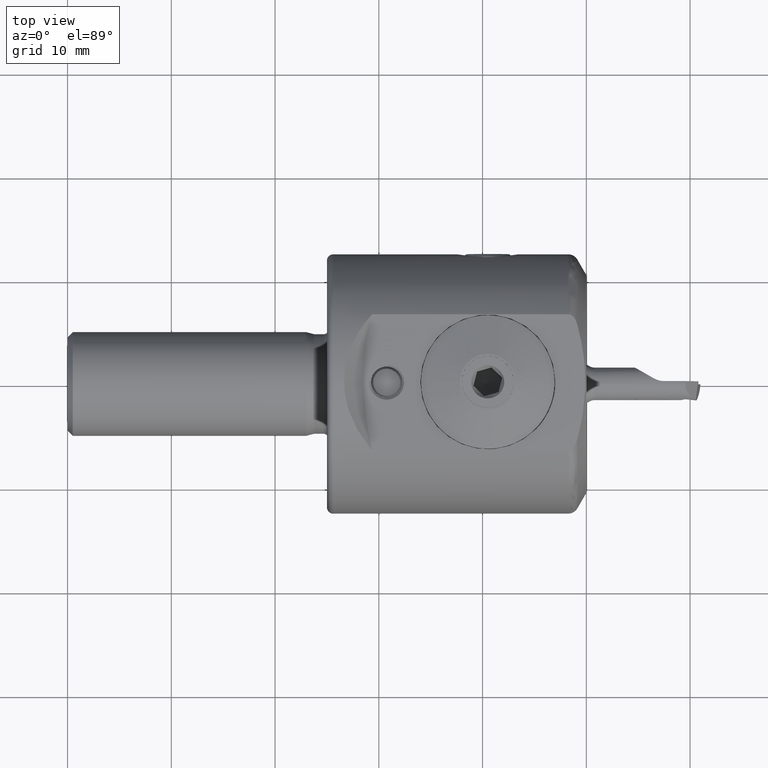
[diagram: clean part render]
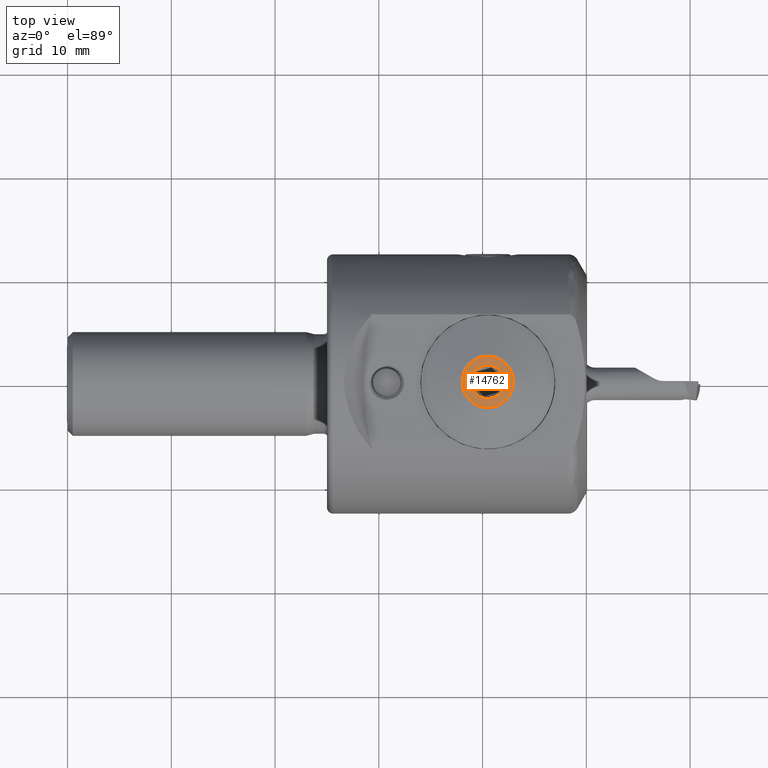
[diagram: same view with one face highlighted and labeled with its STEP entity id]
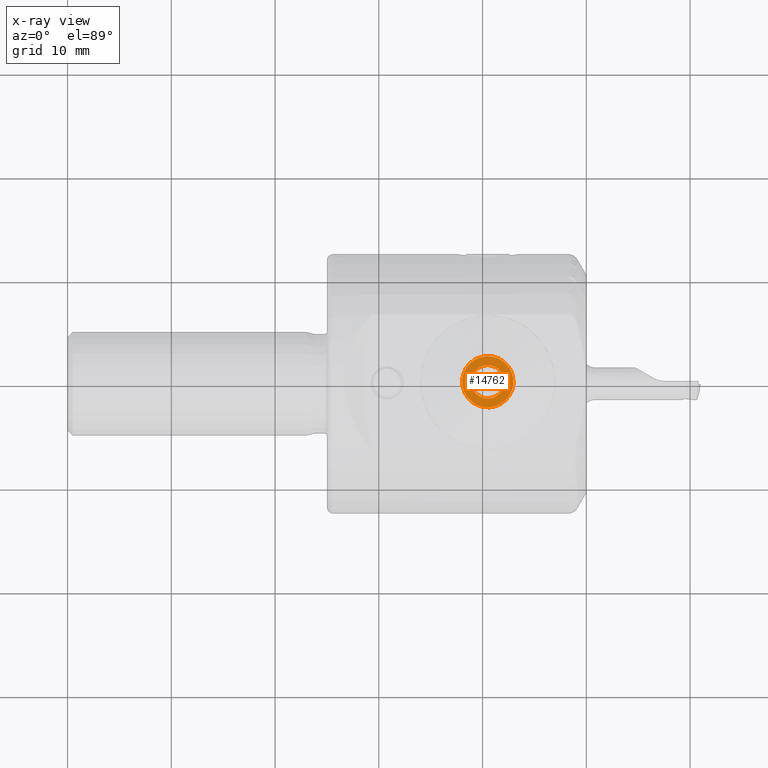
[diagram: x-ray of the same camera — body ghosted, the highlighted face saturated]
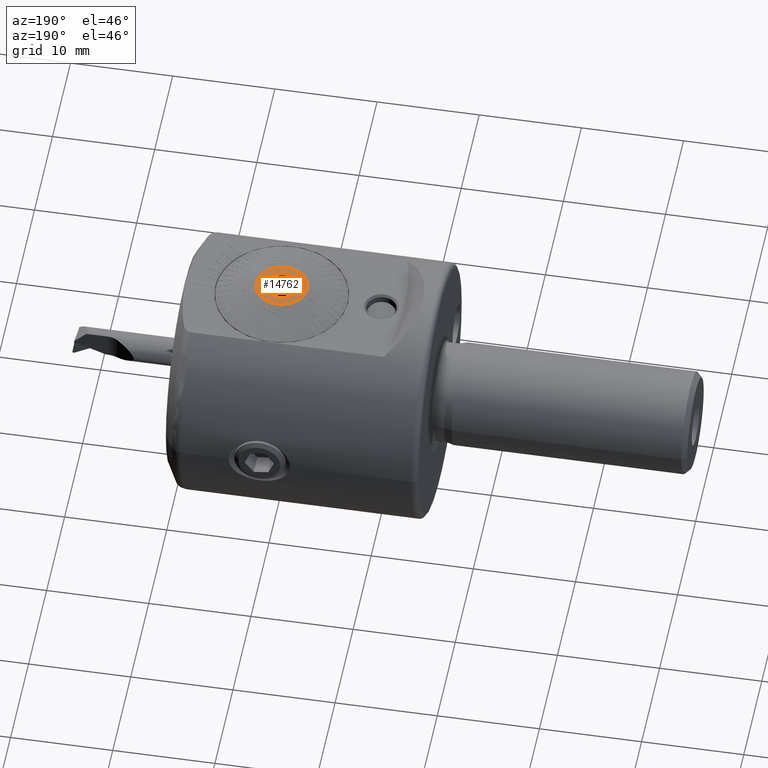
[diagram: same view with one face highlighted and labeled with its STEP entity id]
A machine part, top view. The second image highlights one B-rep face of the part: STEP entity #14762.
The next image is the same camera in x-ray: the body ghosted, the highlighted face saturated — about 0% of this face is hidden behind the body in this view.
A second angle (auxiliary view) of the same face is appended — the face is thin or edge-on in the first view.
In plain terms, the highlighted planar face has unit normal (-0, -0, 1).
Its self-contained STEP definition (entity closure, byte-faithful):
#174 = VERTEX_POINT ( 'NONE', #23535 ) ;
#219 = VERTEX_POINT ( 'NONE', #18344 ) ;
#1000 = DIRECTION ( 'NONE',  ( 1.000000000000000000, -1.464247418776908500E-046, 0.0000000000000000000 ) ) ;
#1603 = PLANE ( 'NONE',  #5739 ) ;
#2459 = CIRCLE ( 'NONE', #22869, 1.600000000000001600 ) ;
#3117 = ORIENTED_EDGE ( 'NONE', *, *, #29800, .T. ) ;
#5044 = ORIENTED_EDGE ( 'NONE', *, *, #23021, .T. ) ;
#5739 = AXIS2_PLACEMENT_3D ( 'NONE', #14145, #29068, #24151 ) ;
#6266 = DIRECTION ( 'NONE',  ( 1.000000000000000000, -1.464247418776908500E-046, 0.0000000000000000000 ) ) ;
#7165 = EDGE_CURVE ( 'NONE', #219, #174, #8386, .T. ) ;
#7505 = EDGE_LOOP ( 'NONE', ( #5044, #3117 ) ) ;
#8386 = CIRCLE ( 'NONE', #31750, 2.475000000000002300 ) ;
#11572 = EDGE_LOOP ( 'NONE', ( #21115, #25054 ) ) ;
#13763 = CARTESIAN_POINT ( 'NONE',  ( 0.0000000000000000000, 0.0000000000000000000, 0.0000000000000000000 ) ) ;
#14060 = AXIS2_PLACEMENT_3D ( 'NONE', #13763, #31177, #16259 ) ;
#14145 = CARTESIAN_POINT ( 'NONE',  ( 0.0000000000000000000, 1.600000000000001400, 6.776263578028806000E-018 ) ) ;
#14302 = CARTESIAN_POINT ( 'NONE',  ( 0.0000000000000000000, 0.0000000000000000000, 0.0000000000000000000 ) ) ;
#14762 = ADVANCED_FACE ( 'NONE', ( #30755, #18287 ), #1603, .T. ) ;
#15049 = CIRCLE ( 'NONE', #19199, 2.475000000000002300 ) ;
#16037 = CARTESIAN_POINT ( 'NONE',  ( 0.0000000000000000000, 0.0000000000000000000, 0.0000000000000000000 ) ) ;
#16259 = DIRECTION ( 'NONE',  ( -4.379057701015049000E-047, -6.938893903907221400E-018, -1.000000000000000000 ) ) ;
#16483 = CIRCLE ( 'NONE', #14060, 1.600000000000001600 ) ;
#16797 = DIRECTION ( 'NONE',  ( -4.379057701015049500E-047, -6.938893903907222200E-018, -1.000000000000000000 ) ) ;
#18287 = FACE_OUTER_BOUND ( 'NONE', #11572, .T. ) ;
#18344 = CARTESIAN_POINT ( 'NONE',  ( -1.083816781001225700E-046, -1.717376241217039100E-017, -2.475000000000002300 ) ) ;
#18541 = DIRECTION ( 'NONE',  ( -4.379057701015049500E-047, -6.938893903907222200E-018, -1.000000000000000000 ) ) ;
#18803 = EDGE_CURVE ( 'NONE', #174, #219, #15049, .T. ) ;
#19199 = AXIS2_PLACEMENT_3D ( 'NONE', #16037, #1000, #18541 ) ;
#19989 = VERTEX_POINT ( 'NONE', #20309 ) ;
#20309 = CARTESIAN_POINT ( 'NONE',  ( 2.848670323727939600E-062, 1.848412576173251200E-016, -1.600000000000001600 ) ) ;
#21115 = ORIENTED_EDGE ( 'NONE', *, *, #7165, .F. ) ;
#21204 = CARTESIAN_POINT ( 'NONE',  ( 0.0000000000000000000, 0.0000000000000000000, 0.0000000000000000000 ) ) ;
#22251 = CARTESIAN_POINT ( 'NONE',  ( 0.0000000000000000000, 1.110223024625156600E-017, 1.600000000000001600 ) ) ;
#22609 = VERTEX_POINT ( 'NONE', #22251 ) ;
#22869 = AXIS2_PLACEMENT_3D ( 'NONE', #21204, #6266, #23745 ) ;
#23021 = EDGE_CURVE ( 'NONE', #22609, #19989, #16483, .T. ) ;
#23535 = CARTESIAN_POINT ( 'NONE',  ( 4.747783872879895100E-062, 3.202738452011403300E-016, 2.475000000000000100 ) ) ;
#23745 = DIRECTION ( 'NONE',  ( -4.379057701015049000E-047, -6.938893903907221400E-018, -1.000000000000000000 ) ) ;
#24151 = DIRECTION ( 'NONE',  ( 4.379057701015049500E-047, 6.938893903907222200E-018, 1.000000000000000000 ) ) ;
#25054 = ORIENTED_EDGE ( 'NONE', *, *, #18803, .F. ) ;
#29068 = DIRECTION ( 'NONE',  ( -1.000000000000000000, 1.464247418776908500E-046, 4.379057701015049500E-047 ) ) ;
#29800 = EDGE_CURVE ( 'NONE', #19989, #22609, #2459, .T. ) ;
#30755 = FACE_BOUND ( 'NONE', #7505, .T. ) ;
#31177 = DIRECTION ( 'NONE',  ( 1.000000000000000000, -1.464247418776908500E-046, 0.0000000000000000000 ) ) ;
#31735 = DIRECTION ( 'NONE',  ( 1.000000000000000000, -1.464247418776908500E-046, 0.0000000000000000000 ) ) ;
#31750 = AXIS2_PLACEMENT_3D ( 'NONE', #14302, #31735, #16797 ) ;